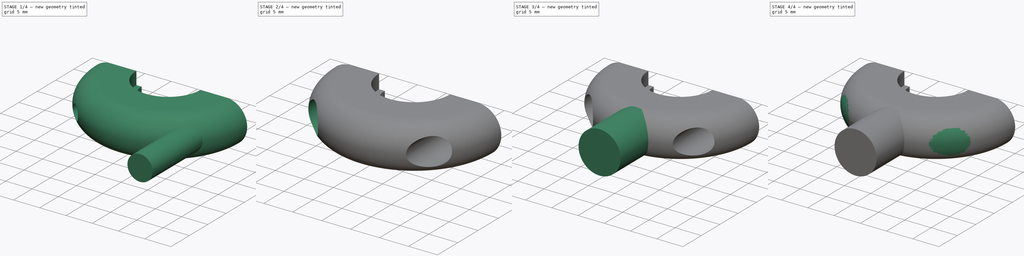
[diagram: build sequence overview — one tinted view per stage of 4, left to right]
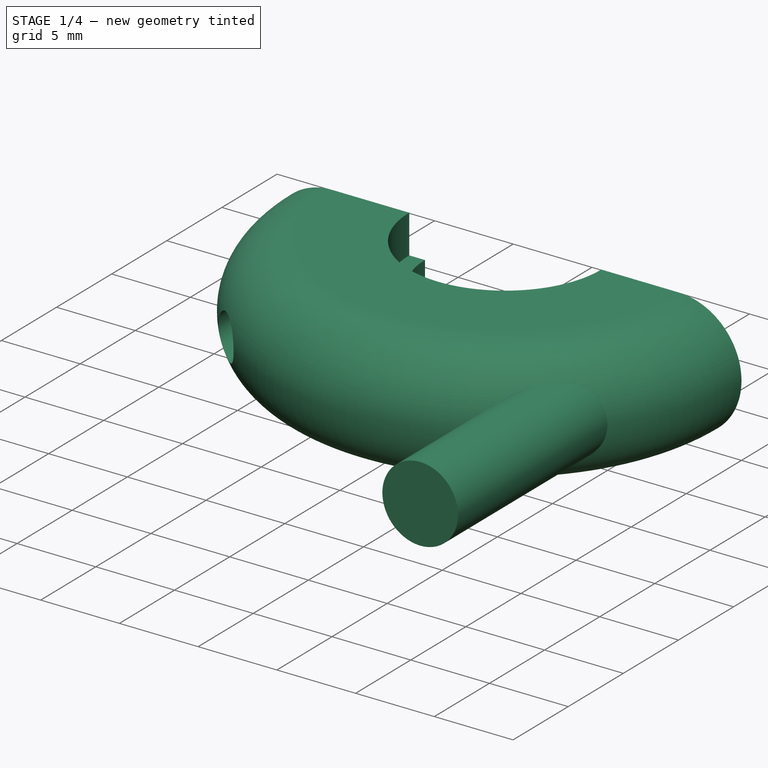
[diagram: stage 1 of 4 — iso view after this stage's code; geometry added in this stage tinted green]
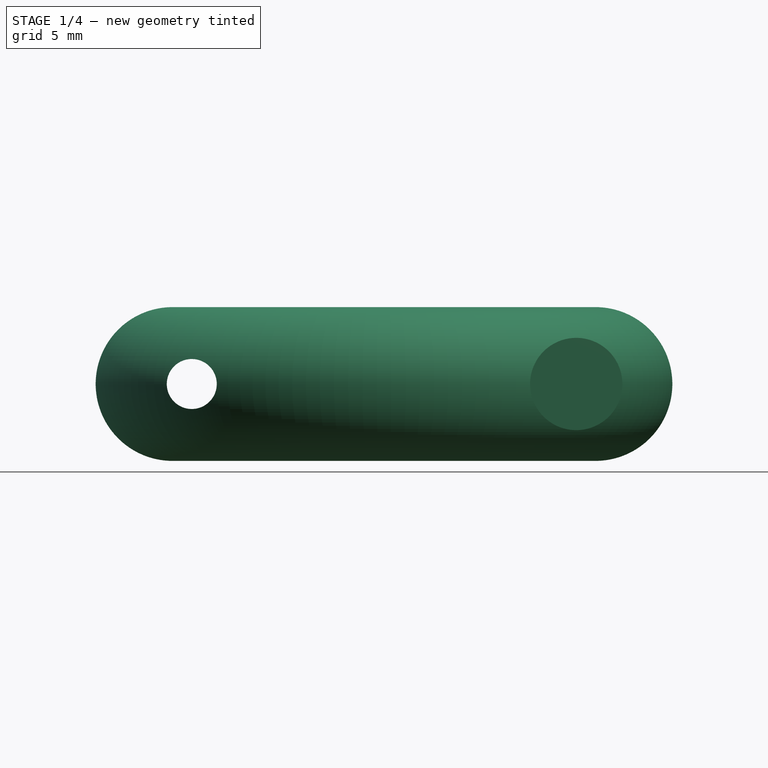
[diagram: stage 1 of 4 — front view after this stage's code; geometry added in this stage tinted green]
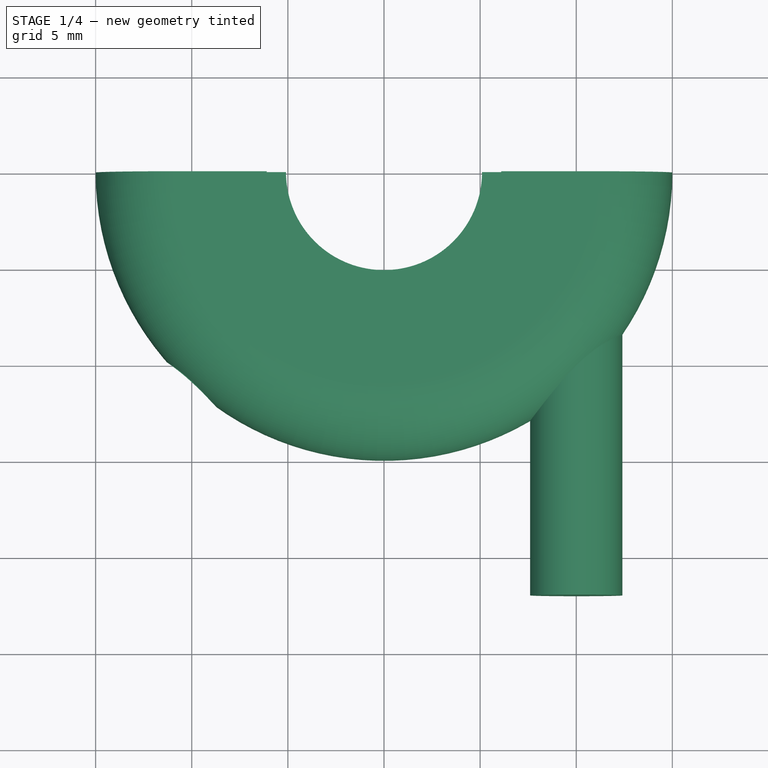
[diagram: stage 1 of 4 — top view after this stage's code; geometry added in this stage tinted green]
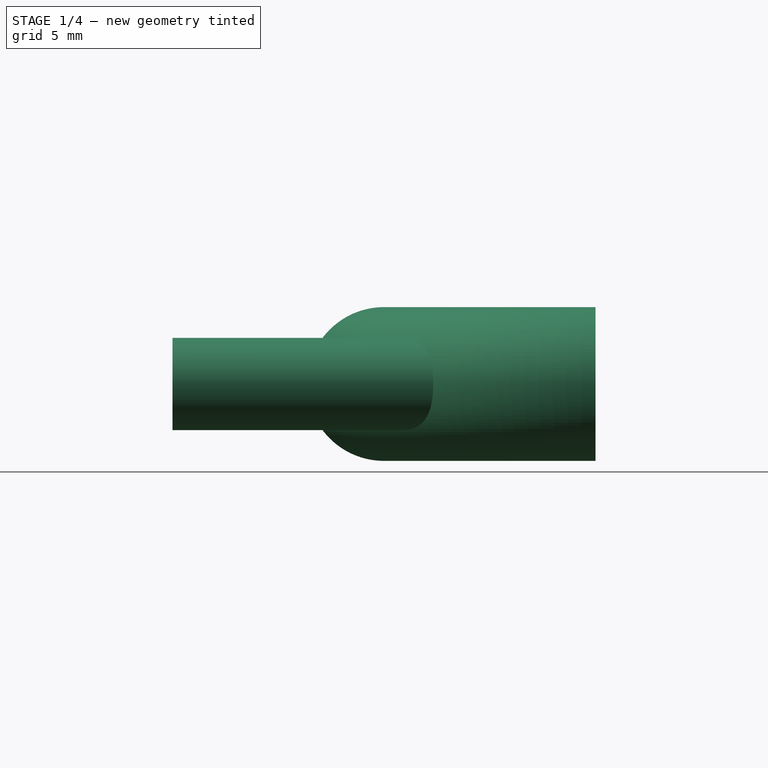
[diagram: stage 1 of 4 — right view after this stage's code; geometry added in this stage tinted green]
FCSTD DOCUMENT  (FreeCAD 0.15R4671 (Git))
Label: Push Ring
License: All rights reserved
LicenseURL: http://en.wikipedia.org/wiki/All_rights_reserved
objects: Sketcher::SketchObject×4, Part::Cylinder×4, PartDesign::Revolution×2, PartDesign::Pocket×2, Part::MultiFuse×2, Part::Cut×2
note: 20 computed .brp shape members not serialized (recipe doc carries the construction recipe); baked Part::Feature solids carry a one-line shape summary decoded from their .brp

FEATURE [Sketcher::SketchObject] Sketch002
  Placement = pos=(0,0,0) rot=(1,0,0;1.5708rad)
  sketch-geometry (9):
    g0: LineSegment StartX=5.1 StartY=1.55 StartZ=0 EndX=5.1 EndY=-1.55 EndZ=0
    g1: LineSegment StartX=5.1 StartY=-1.55 StartZ=0 EndX=6.1 EndY=-1.55 EndZ=0
    g2: LineSegment StartX=6.1 StartY=-1.55 StartZ=0 EndX=6.1 EndY=-4 EndZ=0
    g3: LineSegment StartX=6.1 StartY=-4 StartZ=0 EndX=11 EndY=-4 EndZ=0
    g4: LineSegment StartX=11 StartY=4 StartZ=0 EndX=6.1 EndY=4 EndZ=0
    g5: LineSegment StartX=6.1 StartY=4 StartZ=0 EndX=6.1 EndY=1.55 EndZ=0
    g6: LineSegment StartX=6.1 StartY=1.55 StartZ=0 EndX=5.1 EndY=1.55 EndZ=0
    g7: ArcOfCircle CenterX=11 CenterY=0 CenterZ=0 NormalX=0 NormalY=0 NormalZ=1 Radius=4 StartAngle=4.71239 EndAngle=7.85398
    g8: GeomPoint [constr] X=15 Y=0 Z=0
  constraints (26):
    c: Vertical(g0)
    c: Coincident(g0,g1)
    c: Horizontal(g1)
    c: Coincident(g1,g2)
    c: Vertical(g2)
    c: Coincident(g2,g3)
    c: Horizontal(g4)
    c: Coincident(g4,g5)
    c: Vertical(g5)
    c: Coincident(g5,g6)
    c: Coincident(g6,g0)
    c: Horizontal(g6)
    c: PointOnObject(g7,g-1)
    c: Coincident(g7,g3)
    c: Coincident(g7,g4)
    c: Symmetric(g0,g0,g-1)
    c: Symmetric(g4,g2,g-1)
    c: DistanceX(g-1,g0) = 5.1
    c: DistanceY(g0) = -3.1
    c: DistanceX(g-1,g2) = 6.1
    c: PointOnObject(g8,g7)
    c: PointOnObject(g8,g-1)
    c: Tangent(g7,g4)
    c: Tangent(g3,g7)
    c: DistanceX(g-1,g8) = 15
    c: DistanceY(g4,g3) = -8
FEATURE [PartDesign::Revolution] Revolution001
  Angle = 180
  Axis = (0,0,1)
  Base = (0,0,0)
  Placement = pos=(0,0,0) rot=(1,0,0;1.5708rad)
  ReferenceAxis = -> Sketch002 [V_Axis]
  Reversed = true
  Sketch = -> Sketch002
FEATURE [Sketcher::SketchObject] Sketch003
  Placement = pos=(0,0,0) rot=(-1,0,0;1.5708rad)
  Support = -> Revolution001 [Face10]
  sketch-geometry (2):
    g0: Circle CenterX=-10 CenterY=0 CenterZ=0 NormalX=0 NormalY=0 NormalZ=1 Radius=1.3
    g1: Circle CenterX=10 CenterY=0 CenterZ=0 NormalX=0 NormalY=0 NormalZ=1 Radius=1.3
  constraints (6):
    c: PointOnObject(g0,g-1)
    c: PointOnObject(g1,g-1)
    c: Equal(g1,g0)
    c: Symmetric(g1,g0,g-2)
    c: Radius(g1) = 1.3
    c: DistanceX(g-1,g1) = 10
FEATURE [Part::Cylinder] Cylinder002
  Angle = 360
  Height = 20
  Placement = pos=(10,-2,0) rot=(1,0,0;1.5708rad)
  Radius = 2.4
FEATURE [PartDesign::Pocket] Pocket001
  Length = 5
  Placement = pos=(0,0,0) rot=(1,0,0;1.5708rad)
  Sketch = -> Sketch003
  Type = 1
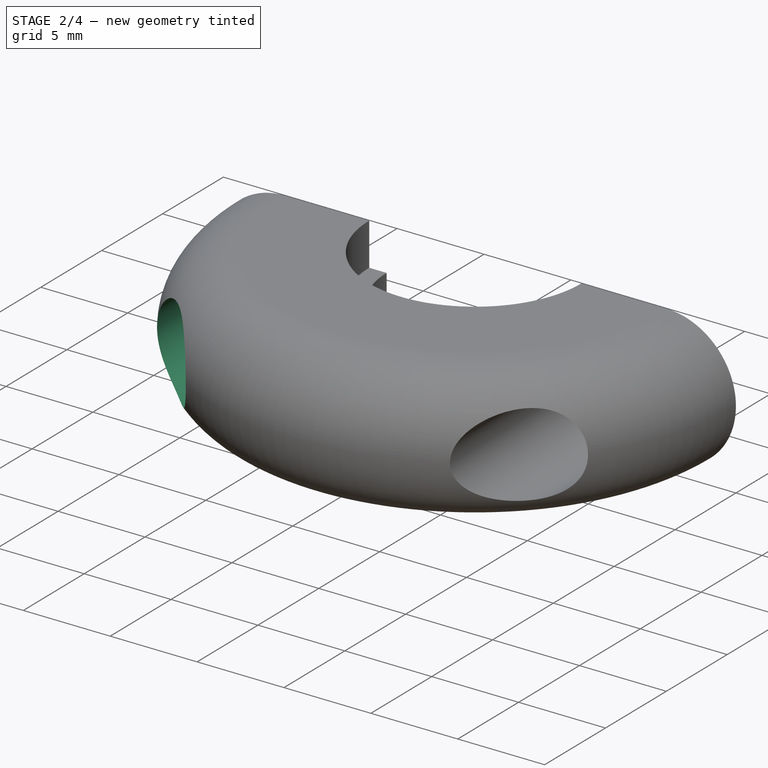
[diagram: stage 2 of 4 — iso view after this stage's code; geometry added in this stage tinted green]
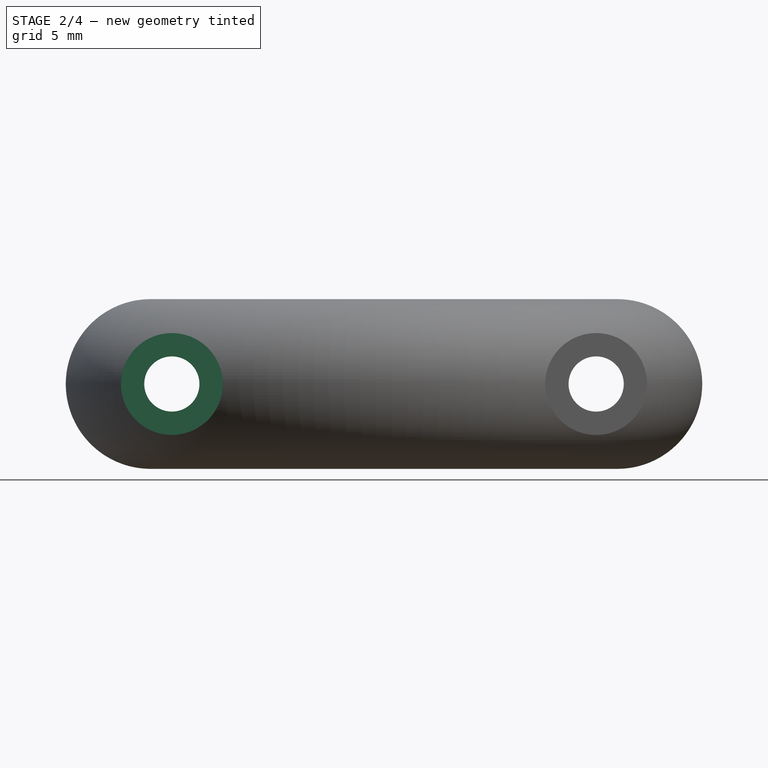
[diagram: stage 2 of 4 — front view after this stage's code; geometry added in this stage tinted green]
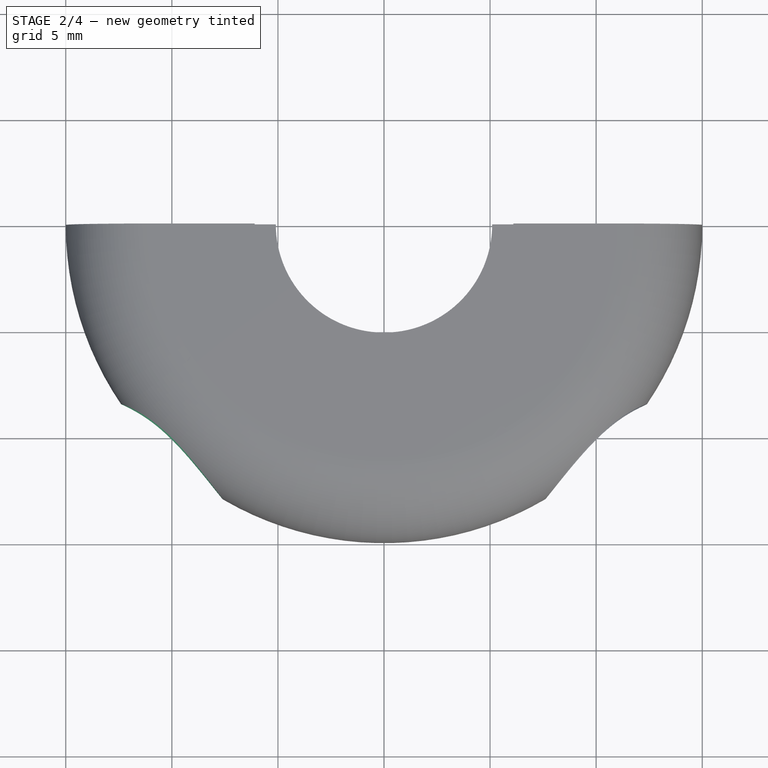
[diagram: stage 2 of 4 — top view after this stage's code; geometry added in this stage tinted green]
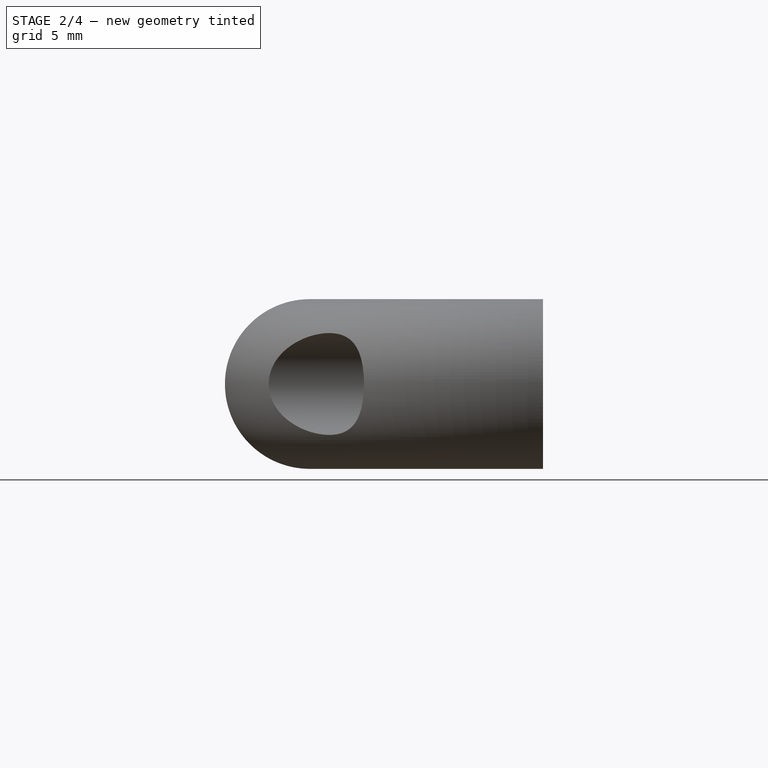
[diagram: stage 2 of 4 — right view after this stage's code; geometry added in this stage tinted green]
FEATURE [Part::Cylinder] Cylinder003
  Angle = 360
  Height = 20
  Placement = pos=(-10,-2,0) rot=(1,0,0;1.5708rad)
  Radius = 2.4
FEATURE [Part::Cut] Cut
  Base = -> Pocket001
  Tool = -> Cylinder002
FEATURE [Part::Cut] Cut001
  Base = -> Cut
  Tool = -> Cylinder003
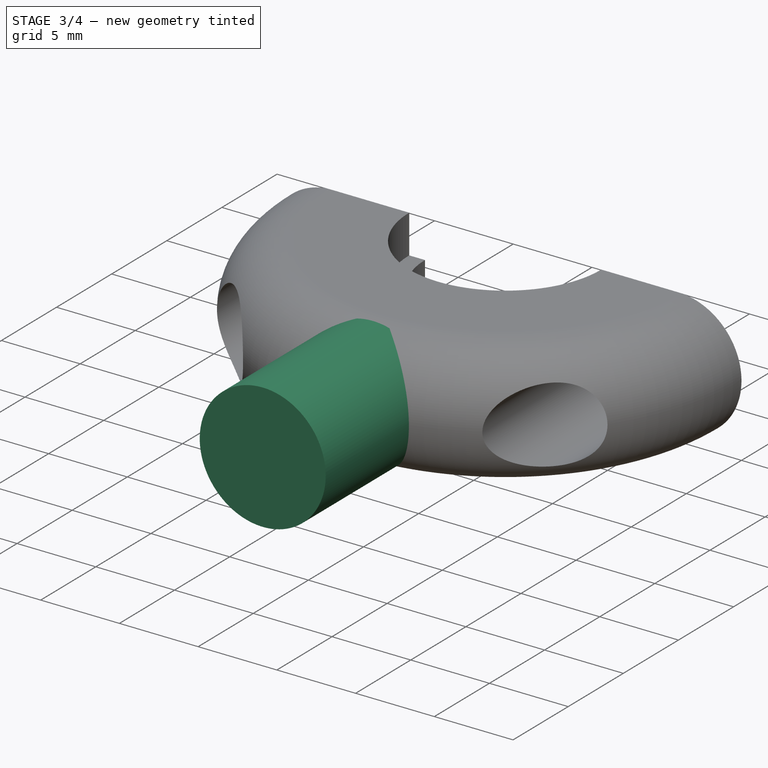
[diagram: stage 3 of 4 — iso view after this stage's code; geometry added in this stage tinted green]
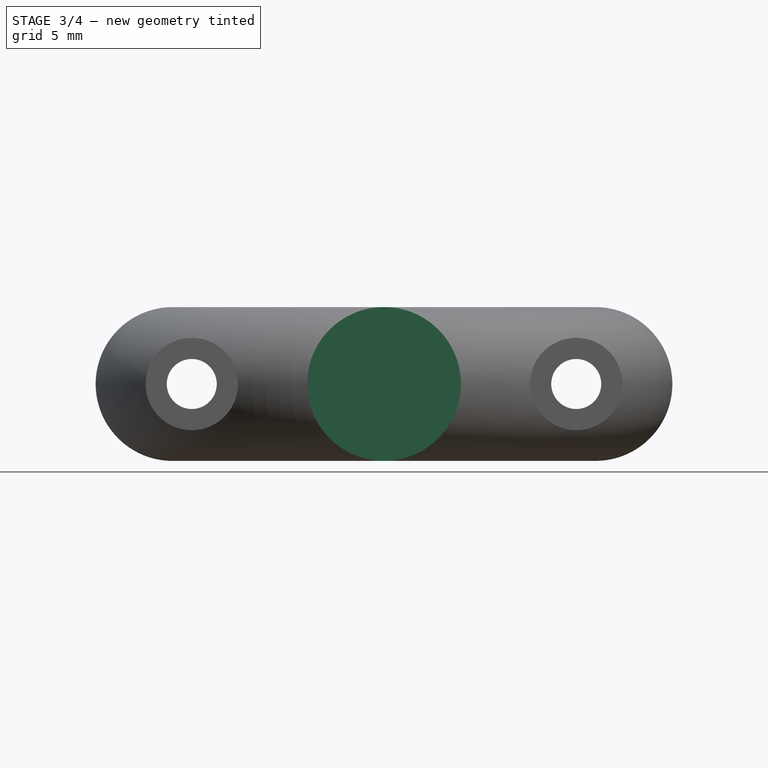
[diagram: stage 3 of 4 — front view after this stage's code; geometry added in this stage tinted green]
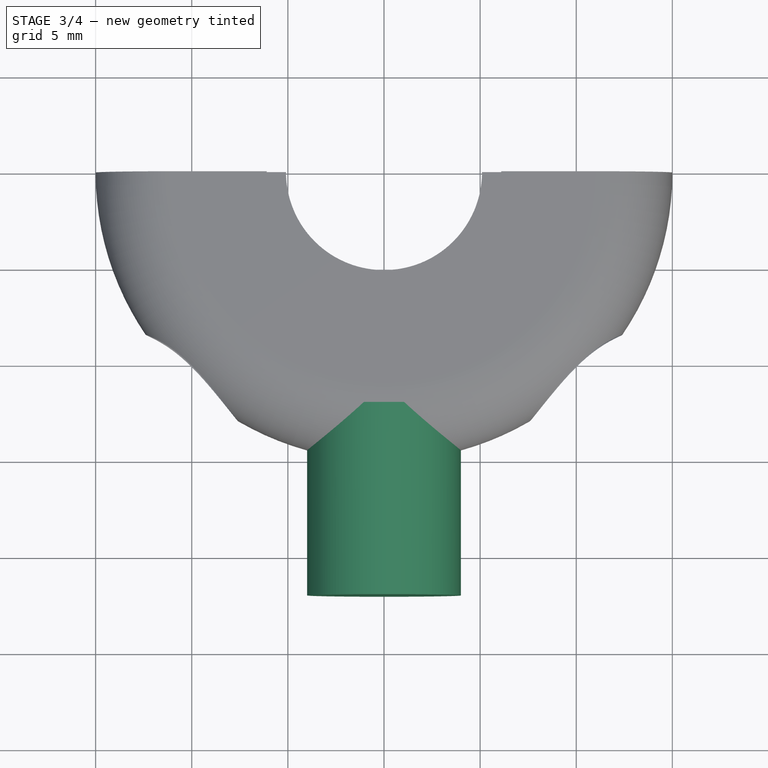
[diagram: stage 3 of 4 — top view after this stage's code; geometry added in this stage tinted green]
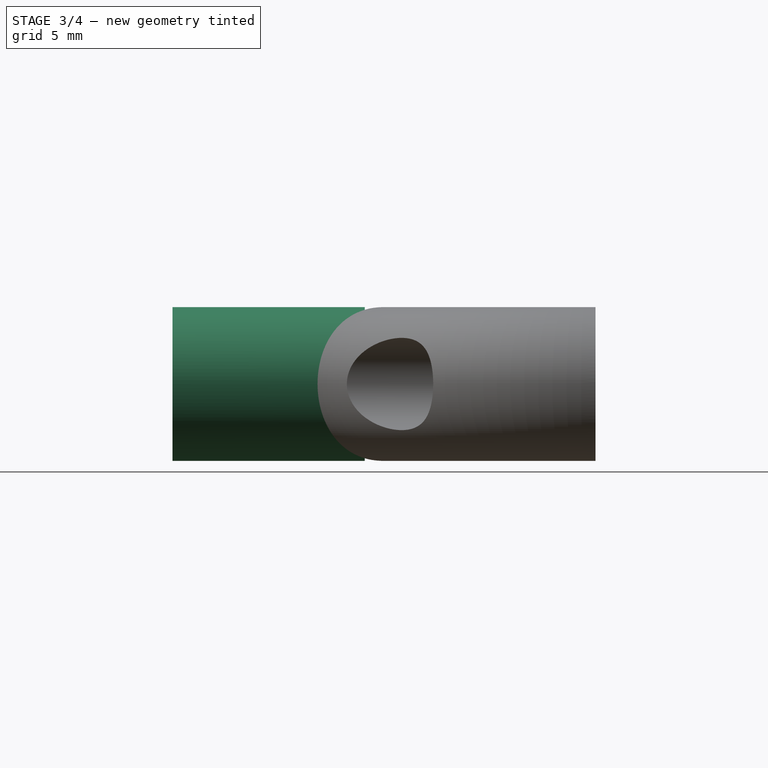
[diagram: stage 3 of 4 — right view after this stage's code; geometry added in this stage tinted green]
FEATURE [Part::Cylinder] Cylinder
  Angle = 360
  Height = 10
  Placement = pos=(0,-12,0) rot=(1,0,0;1.5708rad)
  Radius = 4
FEATURE [Part::Cylinder] Cylinder001
  Angle = 360
  Height = 10
  Placement = pos=(0,-12,0) rot=(1,0,0;1.5708rad)
  Radius = 4
FEATURE [Part::MultiFuse] Fusion001  label="Bottom"
  Shapes = -> [Cut001,Cylinder001]
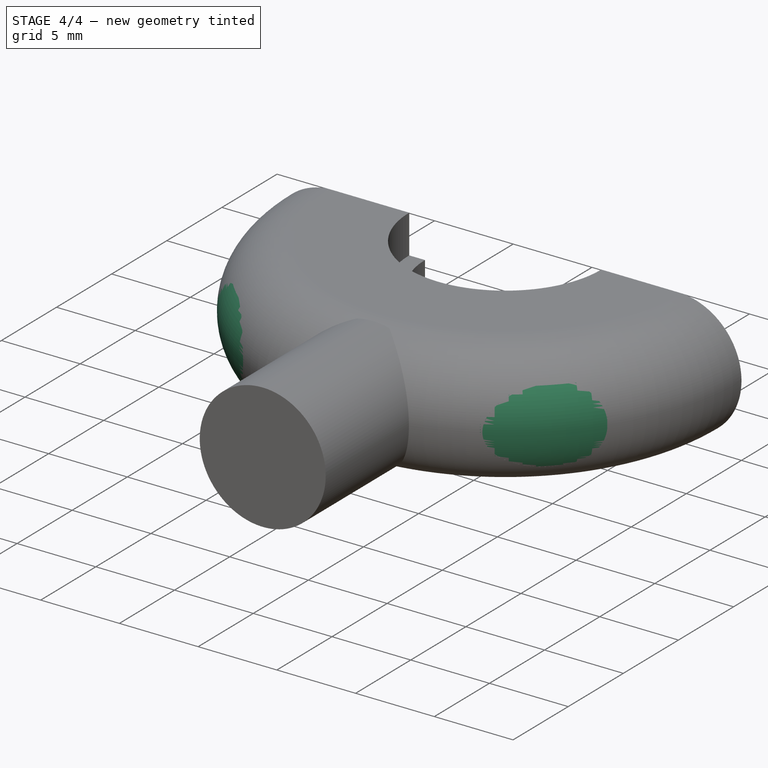
[diagram: stage 4 of 4 — iso view after this stage's code; geometry added in this stage tinted green]
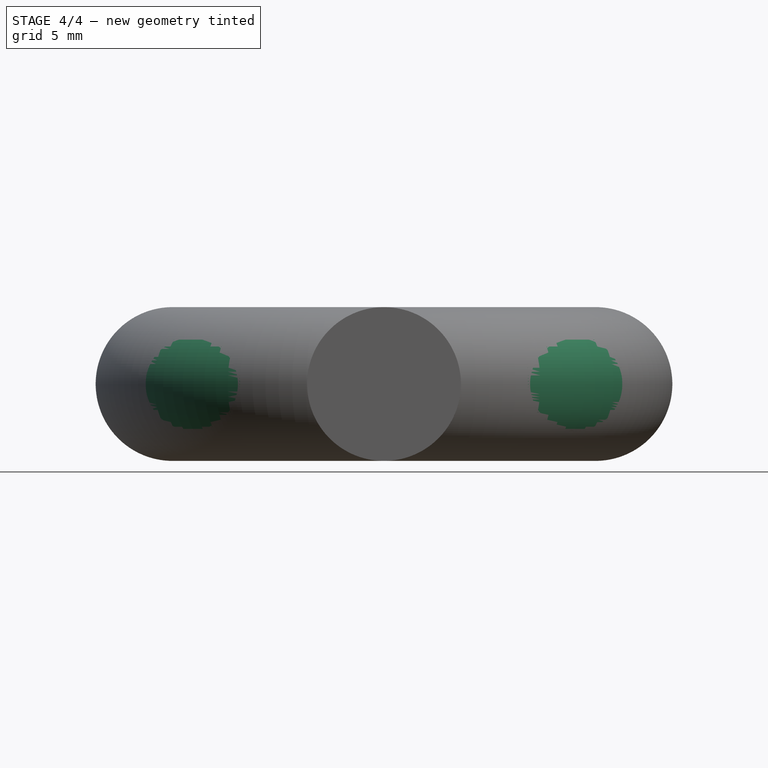
[diagram: stage 4 of 4 — front view after this stage's code; geometry added in this stage tinted green]
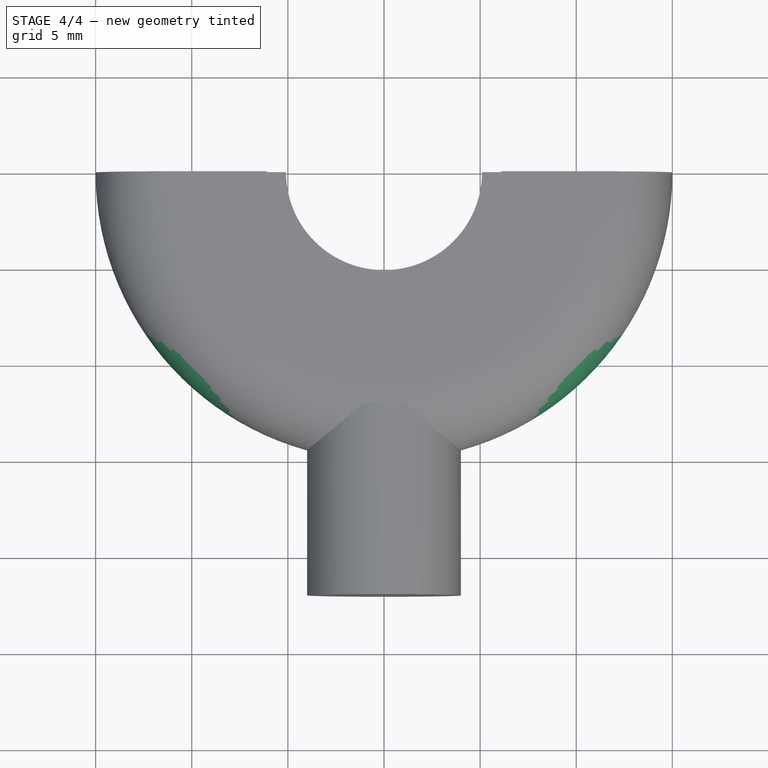
[diagram: stage 4 of 4 — top view after this stage's code; geometry added in this stage tinted green]
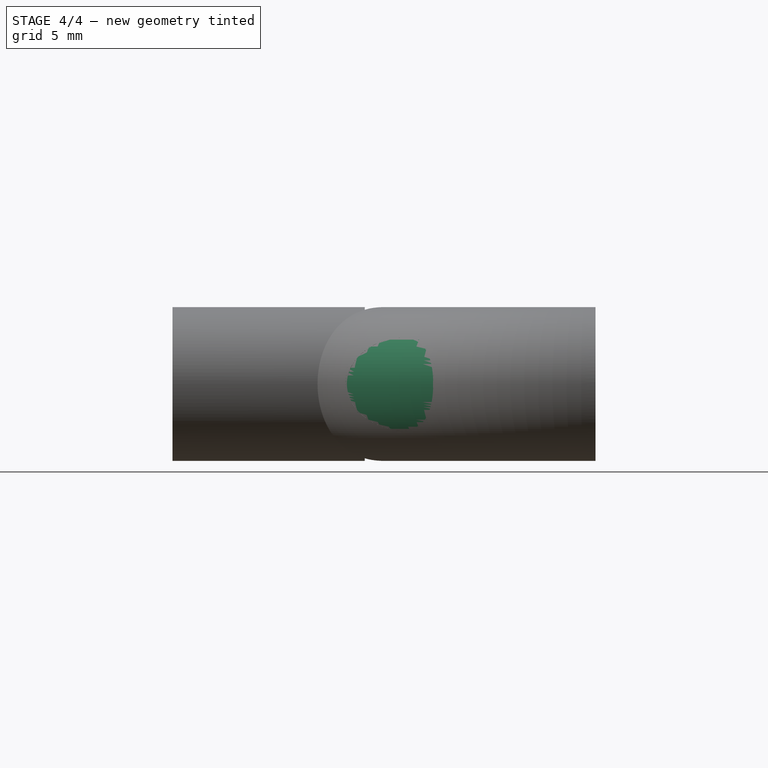
[diagram: stage 4 of 4 — right view after this stage's code; geometry added in this stage tinted green]
FEATURE [Sketcher::SketchObject] Sketch
  Placement = pos=(0,0,0) rot=(1,0,0;1.5708rad)
  sketch-geometry (9):
    g0: LineSegment StartX=5.1 StartY=1.55 StartZ=0 EndX=5.1 EndY=-1.55 EndZ=0
    g1: LineSegment StartX=5.1 StartY=-1.55 StartZ=0 EndX=6.1 EndY=-1.55 EndZ=0
    g2: LineSegment StartX=6.1 StartY=-1.55 StartZ=0 EndX=6.1 EndY=-4 EndZ=0
    g3: LineSegment StartX=6.1 StartY=-4 StartZ=0 EndX=11 EndY=-4 EndZ=0
    g4: LineSegment StartX=11 StartY=4 StartZ=0 EndX=6.1 EndY=4 EndZ=0
    g5: LineSegment StartX=6.1 StartY=4 StartZ=0 EndX=6.1 EndY=1.55 EndZ=0
    g6: LineSegment StartX=6.1 StartY=1.55 StartZ=0 EndX=5.1 EndY=1.55 EndZ=0
    g7: ArcOfCircle CenterX=11 CenterY=0 CenterZ=0 NormalX=0 NormalY=0 NormalZ=1 Radius=4 StartAngle=4.71239 EndAngle=7.85398
    g8: GeomPoint [constr] X=15 Y=0 Z=0
  constraints (26):
    c: Vertical(g0)
    c: Coincident(g0,g1)
    c: Horizontal(g1)
    c: Coincident(g1,g2)
    c: Vertical(g2)
    c: Coincident(g2,g3)
    c: Horizontal(g4)
    c: Coincident(g4,g5)
    c: Vertical(g5)
    c: Coincident(g5,g6)
    c: Coincident(g6,g0)
    c: Horizontal(g6)
    c: PointOnObject(g7,g-1)
    c: Coincident(g7,g3)
    c: Coincident(g7,g4)
    c: Symmetric(g0,g0,g-1)
    c: Symmetric(g4,g2,g-1)
    c: DistanceX(g-1,g0) = 5.1
    c: DistanceY(g0) = -3.1
    c: DistanceX(g-1,g2) = 6.1
    c: PointOnObject(g8,g7)
    c: PointOnObject(g8,g-1)
    c: Tangent(g7,g4)
    c: Tangent(g3,g7)
    c: DistanceX(g-1,g8) = 15
    c: DistanceY(g4,g3) = -8
FEATURE [PartDesign::Revolution] Revolution
  Angle = 180
  Axis = (0,0,1)
  Base = (0,0,0)
  Placement = pos=(0,0,0) rot=(1,0,0;1.5708rad)
  ReferenceAxis = -> Sketch [V_Axis]
  Reversed = true
  Sketch = -> Sketch
FEATURE [Sketcher::SketchObject] Sketch001
  Placement = pos=(0,0,0) rot=(-1,0,0;1.5708rad)
  Support = -> Revolution [Face9]
  sketch-geometry (2):
    g0: Circle CenterX=-10 CenterY=0 CenterZ=0 NormalX=0 NormalY=0 NormalZ=1 Radius=1.1
    g1: Circle CenterX=10 CenterY=0 CenterZ=0 NormalX=0 NormalY=0 NormalZ=1 Radius=1.1
  constraints (6):
    c: PointOnObject(g0,g-1)
    c: PointOnObject(g1,g-1)
    c: Equal(g1,g0)
    c: Symmetric(g1,g0,g-2)
    c: Radius(g1) = 1.1
    c: DistanceX(g-1,g1) = 10
FEATURE [PartDesign::Pocket] Pocket
  Length = 5
  Placement = pos=(0,0,0) rot=(1,0,0;1.5708rad)
  Sketch = -> Sketch001
  Type = 0
FEATURE [Part::MultiFuse] Fusion  label="Top"
  Shapes = -> [Cylinder,Pocket]
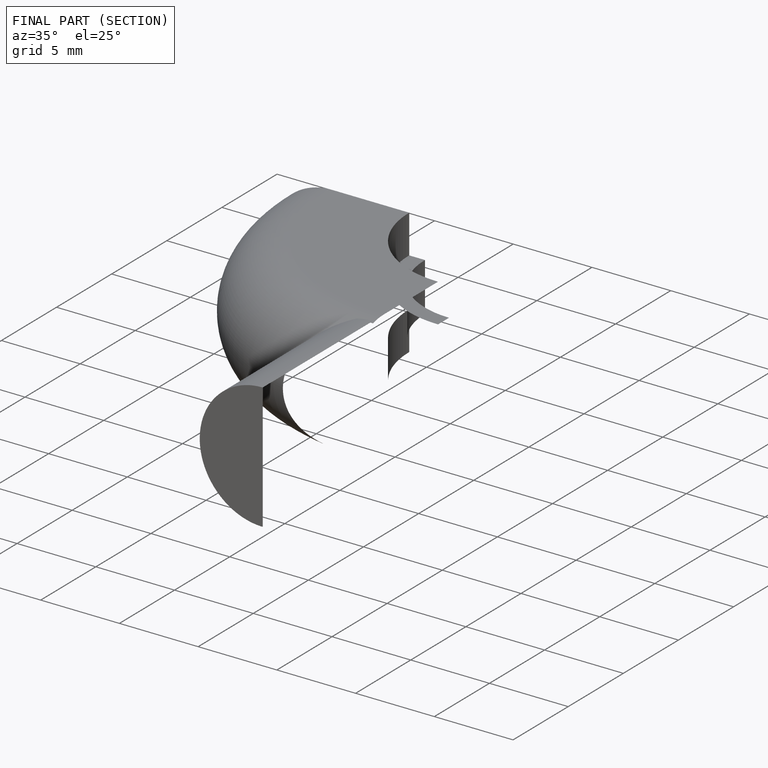
[diagram: finished part — half-section view (interior)]
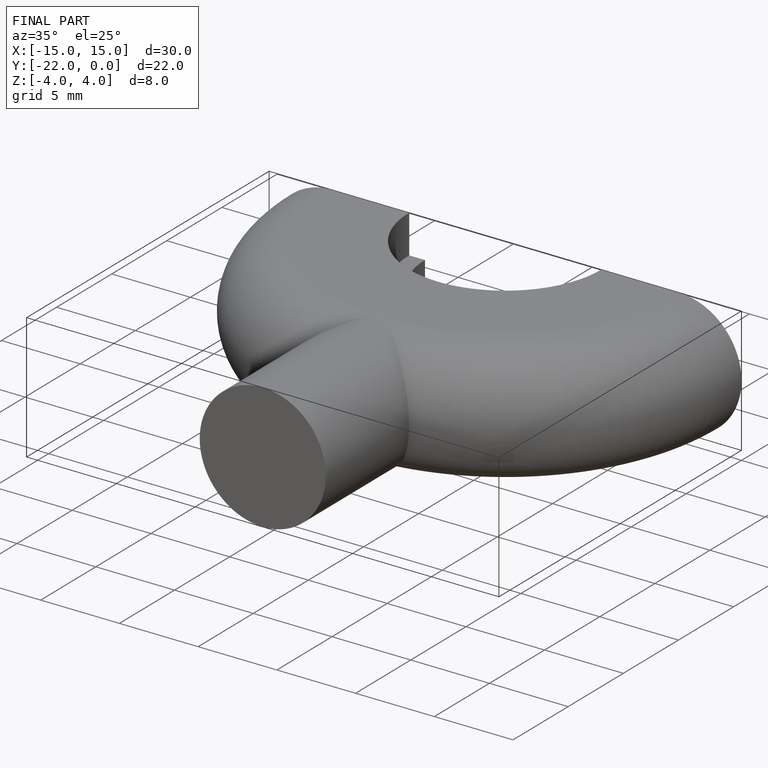
[diagram: finished part — iso view with bounding-box wireframe]
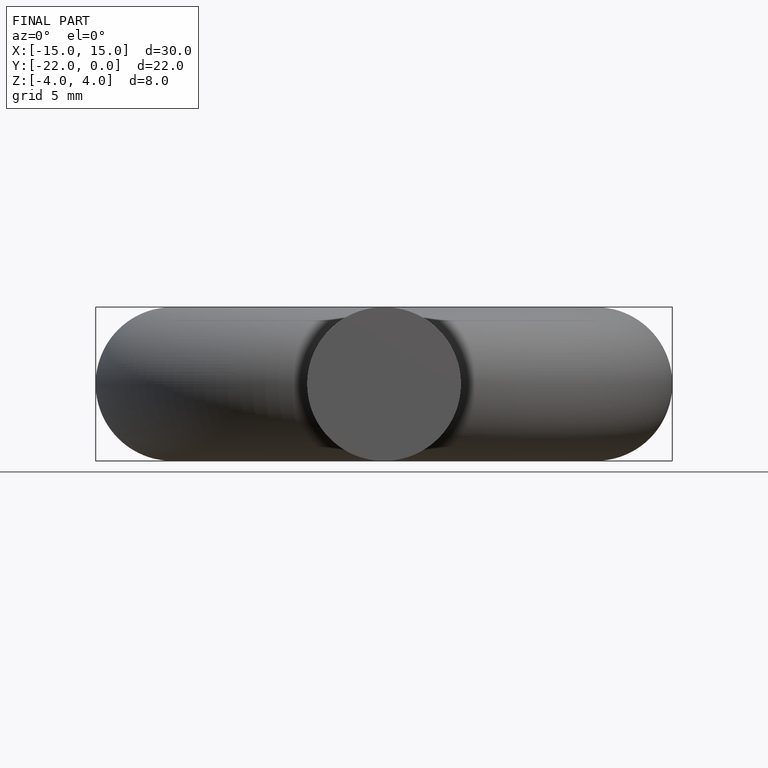
[diagram: finished part — front view with bounding-box wireframe]
